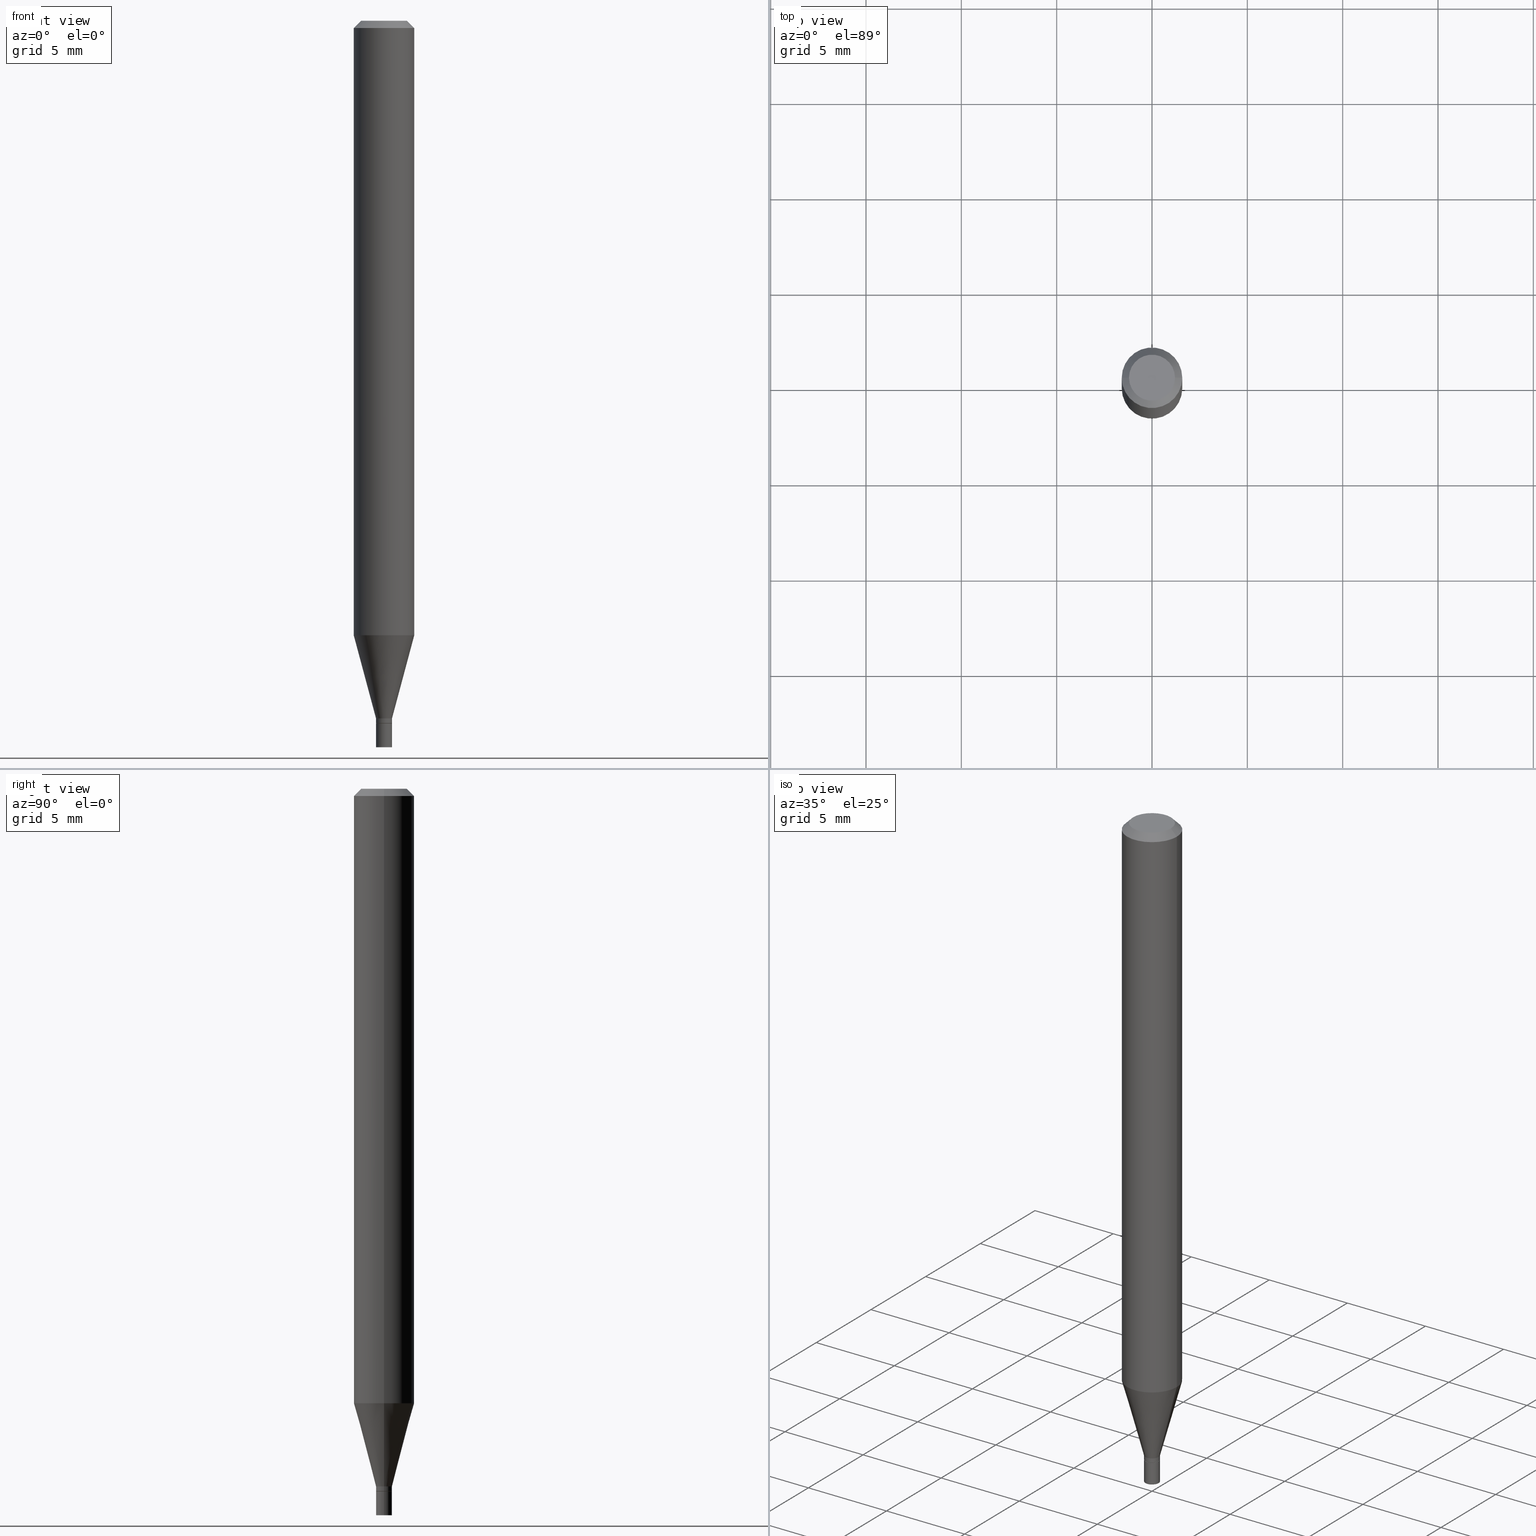
[diagram: canonical four-view strip — front | top / right | iso, engineering-drawing reading convention]
A machine part, canonical four-view strip (front | top / right | iso — engineering-drawing reading convention). The complete STEP part file that produces these views, byte-faithful:
ISO-10303-21;
HEADER;
FILE_DESCRIPTION (( 'STEP AP203' ),
    '1' );
FILE_NAME ('01113.STEP',
    '2024-03-19T23:01:56',
    ( '' ),
    ( '' ),
    'SwSTEP 2.0',
    'SolidWorks 2023',
    '' );
FILE_SCHEMA (( 'CONFIG_CONTROL_DESIGN' ));
ENDSEC;

DATA;
#1 = ADVANCED_FACE ( 'NONE', ( #150 ), #433, .F. ) ;
#2 = VECTOR ( 'NONE', #173, 39.37007874015748143 ) ;
#3 = AXIS2_PLACEMENT_3D ( 'NONE', #460, #425, #439 ) ;
#4 = VERTEX_POINT ( 'NONE', #49 ) ;
#5 = EDGE_LOOP ( 'NONE', ( #145, #39, #78, #212 ) ) ;
#6 = CARTESIAN_POINT ( 'NONE',  ( 0.000000000000000000, 0.000000000000000000, 0.000000000000000000 ) ) ;
#7 = CARTESIAN_POINT ( 'NONE',  ( 3.668203209277705088E-31, -5.237222008264718399E-17, -0.01499999999999999944 ) ) ;
#8 = VERTEX_POINT ( 'NONE', #291 ) ;
#9 = ORIENTED_EDGE ( 'NONE', *, *, #355, .F. ) ;
#10 = AXIS2_PLACEMENT_3D ( 'NONE', #80, #214, #358 ) ;
#11 = DIRECTION ( 'NONE',  ( -2.445468806185136597E-29, 3.491481338843145583E-15, 1.000000000000000000 ) ) ;
#12 = EDGE_CURVE ( 'NONE', #4, #375, #435, .T. ) ;
#13 = CARTESIAN_POINT ( 'NONE',  ( -1.212688977629174450E-44, 1.731398464173454166E-30, 4.958922291554132214E-16 ) ) ;
#14 = ORIENTED_EDGE ( 'NONE', *, *, #294, .T. ) ;
#15 = CARTESIAN_POINT ( 'NONE',  ( -0.06250000000000000000, -1.797137462237488700E-15, -0.01499999999999999944 ) ) ;
#16 = DATE_AND_TIME ( #296, #123 ) ;
#17 = LINE ( 'NONE', #441, #19 ) ;
#18 = ORIENTED_EDGE ( 'NONE', *, *, #70, .T. ) ;
#19 = VECTOR ( 'NONE', #417, 39.37007874015748143 ) ;
#20 = CALENDAR_DATE ( 2024, 19, 3 ) ;
#21 = CARTESIAN_POINT ( 'NONE',  ( -0.01650000000000000078, -5.033568293727934749E-15, -1.450499999999999901 ) ) ;
#22 = AXIS2_PLACEMENT_3D ( 'NONE', #6, #141, #267 ) ;
#23 = DIMENSIONAL_EXPONENTS ( 1.000000000000000000, 0.000000000000000000, 0.000000000000000000, 0.000000000000000000, 0.000000000000000000, 0.000000000000000000, 0.000000000000000000 ) ;
#24 = COORDINATED_UNIVERSAL_TIME_OFFSET ( 5, 0, .BEHIND. ) ;
#25 = DIRECTION ( 'NONE',  ( -2.445468806185136877E-29, 3.491481338843145188E-15, 1.000000000000000000 ) ) ;
#26 = DIRECTION ( 'NONE',  ( -2.445468806185136597E-29, 3.491481338843145583E-15, 1.000000000000000000 ) ) ;
#27 = ORIENTED_EDGE ( 'NONE', *, *, #355, .T. ) ;
#28 = DIRECTION ( 'NONE',  ( 1.000000000000000000, -6.982962677686266711E-15, 0.000000000000000000 ) ) ;
#29 = FACE_OUTER_BOUND ( 'NONE', #360, .T. ) ;
#30 = PRODUCT_DEFINITION_SHAPE ( 'NONE', 'NONE',  #348 ) ;
#31 = VERTEX_POINT ( 'NONE', #98 ) ;
#32 = APPROVAL_ROLE ( '' ) ;
#33 = FACE_OUTER_BOUND ( 'NONE', #295, .T. ) ;
#34 = VECTOR ( 'NONE', #464, 39.37007874015748143 ) ;
#35 = EDGE_CURVE ( 'NONE', #190, #68, #392, .T. ) ;
#36 = CC_DESIGN_APPROVAL ( #45, ( #110 ) ) ;
#37 = CARTESIAN_POINT ( 'NONE',  ( 3.547152503371540530E-29, -5.064393681991982224E-15, -1.450499999999999901 ) ) ;
#38 = CARTESIAN_POINT ( 'NONE',  ( 3.545929768968448850E-29, -5.062647941322561509E-15, -1.450000000000000178 ) ) ;
#39 = ORIENTED_EDGE ( 'NONE', *, *, #255, .T. ) ;
#40 = CARTESIAN_POINT ( 'NONE',  ( 0.01650000000000000078, -1.152188841818234017E-16, 8.045691680063294479E-31 ) ) ;
#41 = APPLICATION_CONTEXT ( 'configuration controlled 3d designs of mechanical parts and assemblies' ) ;
#42 = AXIS2_PLACEMENT_3D ( 'NONE', #409, #97, #263 ) ;
#43 = AXIS2_PLACEMENT_3D ( 'NONE', #116, #373, #376 ) ;
#44 = EDGE_LOOP ( 'NONE', ( #152, #332 ) ) ;
#45 = APPROVAL ( #230, 'UNSPECIFIED' ) ;
#46 = CIRCLE ( 'NONE', #247, 0.01649999999999992445 ) ;
#47 = LOCAL_TIME ( 19, 1, 56.00000000000000000, #62 ) ;
#48 = DIRECTION ( 'NONE',  ( 1.000000000000000000, -6.982962677686276177E-15, 0.000000000000000000 ) ) ;
#49 = CARTESIAN_POINT ( 'NONE',  ( -0.06250000000000001388, -3.985991914242392542E-15, -1.268825662851831737 ) ) ;
#50 = CIRCLE ( 'NONE', #147, 0.06250000000000000000 ) ;
#51 = ORIENTED_EDGE ( 'NONE', *, *, #94, .F. ) ;
#52 = DIRECTION ( 'NONE',  ( -1.000000000000000000, 6.982962677686266711E-15, 0.000000000000000000 ) ) ;
#53 = CC_DESIGN_PERSON_AND_ORGANIZATION_ASSIGNMENT ( #448, #86, ( #175 ) ) ;
#54 = PERSON_AND_ORGANIZATION ( #290, #217 ) ;
#55 = DIRECTION ( 'NONE',  ( 1.000000000000000000, -6.982962677686265922E-15, 4.876176775795935793E-29 ) ) ;
#56 = ORIENTED_EDGE ( 'NONE', *, *, #207, .T. ) ;
#57 = CIRCLE ( 'NONE', #370, 0.06250000000000000000 ) ;
#58 = APPROVAL_ROLE ( '' ) ;
#59 = DIRECTION ( 'NONE',  ( -1.000000000000000000, 6.982962677686266711E-15, 0.000000000000000000 ) ) ;
#60 = EDGE_LOOP ( 'NONE', ( #51, #198, #56, #346 ) ) ;
#61 = LINE ( 'NONE', #407, #193 ) ;
#62 = COORDINATED_UNIVERSAL_TIME_OFFSET ( 5, 0, .BEHIND. ) ;
#63 =( CONVERSION_BASED_UNIT ( 'INCH', #191 ) LENGTH_UNIT ( ) NAMED_UNIT ( #23 ) );
#64 = DIRECTION ( 'NONE',  ( 1.000000000000000000, -6.982962677686266711E-15, 4.876176775795935793E-29 ) ) ;
#65 = CC_DESIGN_PERSON_AND_ORGANIZATION_ASSIGNMENT ( #114, #331, ( #110 ) ) ;
#66 = LINE ( 'NONE', #330, #216 ) ;
#67 = AXIS2_PLACEMENT_3D ( 'NONE', #13, #26, #429 ) ;
#68 = VERTEX_POINT ( 'NONE', #21 ) ;
#69 = FACE_OUTER_BOUND ( 'NONE', #411, .T. ) ;
#70 = EDGE_CURVE ( 'NONE', #8, #466, #427, .T. ) ;
#71 = CARTESIAN_POINT ( 'NONE',  ( 0.000000000000000000, 0.000000000000000000, 0.000000000000000000 ) ) ;
#72 = FACE_OUTER_BOUND ( 'NONE', #60, .T. ) ;
#73 = AXIS2_PLACEMENT_3D ( 'NONE', #271, #335, #55 ) ;
#74 = ADVANCED_FACE ( 'NONE', ( #33 ), #343, .F. ) ;
#75 = FACE_OUTER_BOUND ( 'NONE', #187, .T. ) ;
#76 = ORIENTED_EDGE ( 'NONE', *, *, #207, .F. ) ;
#77 = ADVANCED_FACE ( 'NONE', ( #308 ), #109, .T. ) ;
#78 = ORIENTED_EDGE ( 'NONE', *, *, #223, .F. ) ;
#79 = DIRECTION ( 'NONE',  ( -2.445468806185136597E-29, 3.491481338843145583E-15, 1.000000000000000000 ) ) ;
#80 = CARTESIAN_POINT ( 'NONE',  ( 1.152188841818588511E-16, 0.01649999999999493538, -1.450499999999999901 ) ) ;
#81 = CC_DESIGN_DATE_AND_TIME_ASSIGNMENT ( #342, #92, ( #348 ) ) ;
#82 = DIRECTION ( 'NONE',  ( 1.000000000000000000, -6.982962677686276177E-15, 0.000000000000000000 ) ) ;
#83 = VECTOR ( 'NONE', #168, 39.37007874015748143 ) ;
#84 = FACE_OUTER_BOUND ( 'NONE', #276, .T. ) ;
#85 = VERTEX_POINT ( 'NONE', #120 ) ;
#86 = PERSON_AND_ORGANIZATION_ROLE ( 'design_owner' ) ;
#87 = DIRECTION ( 'NONE',  ( -2.445468806185136597E-29, 3.491481338843145583E-15, 1.000000000000000000 ) ) ;
#88 = DATE_TIME_ROLE ( 'classification_date' ) ;
#89 = PERSON_AND_ORGANIZATION_ROLE ( 'creator' ) ;
#90 = DIRECTION ( 'NONE',  ( -0.7071067811865358044, 2.468850131082134787E-15, -0.7071067811865591191 ) ) ;
#91 = ORIENTED_EDGE ( 'NONE', *, *, #172, .T. ) ;
#92 = DATE_TIME_ROLE ( 'creation_date' ) ;
#93 = CARTESIAN_POINT ( 'NONE',  ( 0.01649999999999992445, -5.177866825504383900E-15, -1.450000000000000178 ) ) ;
#94 = EDGE_CURVE ( 'NONE', #419, #8, #17, .T. ) ;
#95 = ORIENTED_EDGE ( 'NONE', *, *, #371, .F. ) ;
#96 = COORDINATED_UNIVERSAL_TIME_OFFSET ( 5, 0, .BEHIND. ) ;
#97 = DIRECTION ( 'NONE',  ( -2.445468806185136597E-29, 3.491481338843145583E-15, 1.000000000000000000 ) ) ;
#98 = CARTESIAN_POINT ( 'NONE',  ( 0.04749999999999999362, -4.035134999187569255E-16, 4.958922291554157852E-16 ) ) ;
#99 = DIRECTION ( 'NONE',  ( 1.000000000000000000, -6.982962677686243834E-15, 0.000000000000000000 ) ) ;
#100 = CIRCLE ( 'NONE', #383, 0.01649999999999992445 ) ;
#101 = ORIENTED_EDGE ( 'NONE', *, *, #223, .T. ) ;
#102 = DIRECTION ( 'NONE',  ( -0.7071067811865642261, 7.493145998870414114E-15, 0.7071067811865309194 ) ) ;
#103 = DIRECTION ( 'NONE',  ( -2.445468806185136597E-29, 3.491481338843145583E-15, 1.000000000000000000 ) ) ;
#104 = CIRCLE ( 'NONE', #3, 0.01600000000000000033 ) ;
#105 = EDGE_CURVE ( 'NONE', #31, #85, #165, .T. ) ;
#106 = VERTEX_POINT ( 'NONE', #345 ) ;
#107 = CARTESIAN_POINT ( 'NONE',  ( 3.584916967085606921E-29, -5.356492647442320375E-15, -1.500000000000000222 ) ) ;
#108 = EDGE_CURVE ( 'NONE', #458, #106, #462, .T. ) ;
#109 = CONICAL_SURFACE ( 'NONE', #194, 0.01600000000000000033, 0.7853981633974718157 ) ;
#110 = SECURITY_CLASSIFICATION ( '', '', #151 ) ;
#111 = EDGE_LOOP ( 'NONE', ( #244, #367, #408, #437 ) ) ;
#112 = CARTESIAN_POINT ( 'NONE',  ( 3.522697815309689546E-29, -5.029478868603552152E-15, -1.440500000000000114 ) ) ;
#113 = CARTESIAN_POINT ( 'NONE',  ( -0.06250000000000000000, 4.440892098500626162E-16, -3.074334431409316114E-30 ) ) ;
#114 = PERSON_AND_ORGANIZATION ( #290, #217 ) ;
#115 = PRODUCT_RELATED_PRODUCT_CATEGORY ( 'detail', '', ( #175 ) ) ;
#116 = CARTESIAN_POINT ( 'NONE',  ( 0.000000000000000000, 0.000000000000000000, 0.000000000000000000 ) ) ;
#117 = CARTESIAN_POINT ( 'NONE',  ( 0.06250000000000000000, -4.811533449433679005E-16, -0.01499999999999999944 ) ) ;
#118 = DATE_AND_TIME ( #446, #47 ) ;
#119 = MECHANICAL_CONTEXT ( 'NONE', #41, 'mechanical' ) ;
#120 = CARTESIAN_POINT ( 'NONE',  ( 0.06250000000000000000, -4.888073874380388472E-16, -0.01499999999999999944 ) ) ;
#121 = CARTESIAN_POINT ( 'NONE',  ( 3.547152503371540530E-29, -5.064393681991982224E-15, -1.450499999999999901 ) ) ;
#122 = ADVANCED_FACE ( 'NONE', ( #29 ), #192, .F. ) ;
#123 = LOCAL_TIME ( 19, 1, 56.00000000000000000, #96 ) ;
#124 = CARTESIAN_POINT ( 'NONE',  ( 3.522697815309689546E-29, -5.029478868603552152E-15, -1.440500000000000114 ) ) ;
#125 = APPROVAL ( #368, 'UNSPECIFIED' ) ;
#126 = APPROVAL_DATE_TIME ( #118, #45 ) ;
#127 = ORIENTED_EDGE ( 'NONE', *, *, #393, .T. ) ;
#128 = FACE_OUTER_BOUND ( 'NONE', #252, .T. ) ;
#129 = DIRECTION ( 'NONE',  ( 0.2588190451025211281, 1.565188264969623940E-15, 0.9659258262890682012 ) ) ;
#130 = EDGE_CURVE ( 'NONE', #322, #375, #236, .T. ) ;
#131 = EDGE_LOOP ( 'NONE', ( #421, #256 ) ) ;
#132 = CARTESIAN_POINT ( 'NONE',  ( 3.668203209277704895E-29, -5.237222008264718177E-15, -1.500000000000000222 ) ) ;
#133 = PERSON_AND_ORGANIZATION ( #290, #217 ) ;
#134 = FACE_OUTER_BOUND ( 'NONE', #5, .T. ) ;
#135 = AXIS2_PLACEMENT_3D ( 'NONE', #344, #170, #262 ) ;
#136 = CARTESIAN_POINT ( 'NONE',  ( 3.522697815309689546E-29, -5.029478868603552152E-15, -1.440500000000000114 ) ) ;
#137 = VERTEX_POINT ( 'NONE', #93 ) ;
#138 = CC_DESIGN_PERSON_AND_ORGANIZATION_ASSIGNMENT ( #245, #181, ( #398 ) ) ;
#139 = EDGE_LOOP ( 'NONE', ( #340, #91, #166, #384 ) ) ;
#140 = ADVANCED_FACE ( 'NONE', ( #297 ), #162, .T. ) ;
#141 = DIRECTION ( 'NONE',  ( -2.445468806185136597E-29, 3.491481338843145583E-15, 1.000000000000000000 ) ) ;
#142 = ORIENTED_EDGE ( 'NONE', *, *, #381, .T. ) ;
#143 = MANIFOLD_SOLID_BREP ( 'Body-Move/Copy2[1]', #176 ) ;
#144 = DIRECTION ( 'NONE',  ( 1.000000000000000000, -6.982962677686265922E-15, 4.876176775795935793E-29 ) ) ;
#145 = ORIENTED_EDGE ( 'NONE', *, *, #312, .T. ) ;
#146 = CIRCLE ( 'NONE', #382, 0.01650000000000000078 ) ;
#147 = AXIS2_PLACEMENT_3D ( 'NONE', #365, #196, #28 ) ;
#148 = ORIENTED_EDGE ( 'NONE', *, *, #286, .F. ) ;
#149 = CARTESIAN_POINT ( 'NONE',  ( 0.01650000000000000078, -5.352440892446541357E-15, -1.500000000000000222 ) ) ;
#150 = FACE_OUTER_BOUND ( 'NONE', #131, .T. ) ;
#151 = SECURITY_CLASSIFICATION_LEVEL ( 'unclassified' ) ;
#152 = ORIENTED_EDGE ( 'NONE', *, *, #294, .F. ) ;
#153 = DIRECTION ( 'NONE',  ( -2.445468806185136877E-29, 3.491481338843145188E-15, 1.000000000000000000 ) ) ;
#154 = ADVANCED_FACE ( 'NONE', ( #420 ), #269, .T. ) ;
#155 = MANIFOLD_SOLID_BREP ( 'Body-Move/Copy2[2]', #209 ) ;
#156 = DIRECTION ( 'NONE',  ( -2.445468806185136597E-29, 3.491481338843145583E-15, 1.000000000000000000 ) ) ;
#157 = DIRECTION ( 'NONE',  ( 1.000000000000000000, -6.982962677686271444E-15, 0.000000000000000000 ) ) ;
#158 = CONICAL_SURFACE ( 'NONE', #423, 0.01600000000000000033, 0.7853981633974718157 ) ;
#159 = AXIS2_PLACEMENT_3D ( 'NONE', #112, #79, #82 ) ;
#160 = ORIENTED_EDGE ( 'NONE', *, *, #465, .T. ) ;
#161 =( LENGTH_UNIT ( ) NAMED_UNIT ( * ) SI_UNIT ( $, .METRE. ) );
#162 = CYLINDRICAL_SURFACE ( 'NONE', #323, 0.06250000000000000000 ) ;
#163 = EDGE_CURVE ( 'NONE', #466, #301, #61, .T. ) ;
#164 = CALENDAR_DATE ( 2024, 19, 3 ) ;
#165 = LINE ( 'NONE', #117, #336 ) ;
#166 = ORIENTED_EDGE ( 'NONE', *, *, #215, .T. ) ;
#167 = DIRECTION ( 'NONE',  ( 1.000000000000000000, -6.982962677686262766E-15, 0.000000000000000000 ) ) ;
#168 = DIRECTION ( 'NONE',  ( -2.445468806185136877E-29, 3.491481338843145188E-15, 1.000000000000000000 ) ) ;
#169 = LOCAL_TIME ( 19, 1, 56.00000000000000000, #224 ) ;
#170 = DIRECTION ( 'NONE',  ( 0.000000000000000000, 0.000000000000000000, 1.000000000000000000 ) ) ;
#171 = DIRECTION ( 'NONE',  ( 1.000000000000000000, -6.982962677686276177E-15, 0.000000000000000000 ) ) ;
#172 = EDGE_CURVE ( 'NONE', #315, #404, #146, .T. ) ;
#173 = DIRECTION ( 'NONE',  ( -2.445468806185136877E-29, 3.491481338843145188E-15, 1.000000000000000000 ) ) ;
#174 = DIRECTION ( 'NONE',  ( 1.000000000000000000, -6.982962677686276177E-15, 0.000000000000000000 ) ) ;
#175 = PRODUCT ( '01113', '01113', '', ( #119 ) ) ;
#176 = CLOSED_SHELL ( 'NONE', ( #363, #352, #401, #1 ) ) ;
#177 = DIRECTION ( 'NONE',  ( -2.445468806185136597E-29, 3.491481338843145583E-15, 1.000000000000000000 ) ) ;
#178 = CONICAL_SURFACE ( 'NONE', #279, 0.01649999999999992445, 0.2617993877991497964 ) ;
#179 = EDGE_CURVE ( 'NONE', #8, #4, #66, .T. ) ;
#180 = AXIS2_PLACEMENT_3D ( 'NONE', #233, #87, #222 ) ;
#181 = PERSON_AND_ORGANIZATION_ROLE ( 'design_supplier' ) ;
#182 = ORIENTED_EDGE ( 'NONE', *, *, #215, .F. ) ;
#183 = FACE_OUTER_BOUND ( 'NONE', #139, .T. ) ;
#184 = CARTESIAN_POINT ( 'NONE',  ( -0.04749999999999999362, 3.578768372314218888E-16, 4.958922291554107562E-16 ) ) ;
#185 = CIRCLE ( 'NONE', #180, 0.04749999999999999362 ) ;
#186 = APPROVAL_PERSON_ORGANIZATION ( #225, #125, #58 ) ;
#187 = EDGE_LOOP ( 'NONE', ( #101, #456, #95, #76 ) ) ;
#188 = DIRECTION ( 'NONE',  ( -2.438088387897960049E-29, 3.491481338843145188E-15, 1.000000000000000000 ) ) ;
#189 = EDGE_CURVE ( 'NONE', #31, #322, #185, .T. ) ;
#190 = VERTEX_POINT ( 'NONE', #366 ) ;
#191 = LENGTH_MEASURE_WITH_UNIT ( LENGTH_MEASURE( 0.02539999999999999897 ), #161 );
#192 = PLANE ( 'NONE',  #319 ) ;
#193 = VECTOR ( 'NONE', #129, 39.37007874015748143 ) ;
#194 = AXIS2_PLACEMENT_3D ( 'NONE', #121, #266, #157 ) ;
#195 = APPROVAL_PERSON_ORGANIZATION ( #364, #45, #273 ) ;
#196 = DIRECTION ( 'NONE',  ( -2.445468806185136597E-29, 3.491481338843145583E-15, 1.000000000000000000 ) ) ;
#197 = DIRECTION ( 'NONE',  ( -2.445468806185136597E-29, 3.491481338843145583E-15, 1.000000000000000000 ) ) ;
#198 = ORIENTED_EDGE ( 'NONE', *, *, #341, .T. ) ;
#199 = CARTESIAN_POINT ( 'NONE',  ( 0.01649999999999992445, -1.152188841818228594E-16, 8.045691680063255943E-31 ) ) ;
#200 = APPLICATION_PROTOCOL_DEFINITION ( 'international standard', 'config_control_design', 1994, #41 ) ;
#201 = CARTESIAN_POINT ( 'NONE',  ( 3.668203209277705088E-31, -5.237222008264718399E-17, -0.01499999999999999944 ) ) ;
#202 = VECTOR ( 'NONE', #102, 39.37007874015748143 ) ;
#203 = DIRECTION ( 'NONE',  ( 1.000000000000000000, -6.982962677686243834E-15, 0.000000000000000000 ) ) ;
#204 = CARTESIAN_POINT ( 'NONE',  ( 3.522697815309689546E-29, -5.029478868603552152E-15, -1.440500000000000114 ) ) ;
#205 = LINE ( 'NONE', #385, #34 ) ;
#206 = CARTESIAN_POINT ( 'NONE',  ( -0.01600000000000000033, -4.950706844270366093E-15, -1.450499999999999901 ) ) ;
#207 = EDGE_CURVE ( 'NONE', #137, #466, #339, .T. ) ;
#208 = CYLINDRICAL_SURFACE ( 'NONE', #22, 0.01649999999999992445 ) ;
#209 = CLOSED_SHELL ( 'NONE', ( #418, #281, #154, #436, #306, #249, #140, #410, #122, #74, #77, #237 ) ) ;
#210 = CONICAL_SURFACE ( 'NONE', #351, 0.06250000000000000000, 0.7853981633974318477 ) ;
#211 = EDGE_LOOP ( 'NONE', ( #287, #18, #231, #430 ) ) ;
#212 = ORIENTED_EDGE ( 'NONE', *, *, #243, .F. ) ;
#213 = CARTESIAN_POINT ( 'NONE',  ( -0.01650000000000000078, 1.172395514004165362E-16, -8.116242898920594736E-31 ) ) ;
#214 = DIRECTION ( 'NONE',  ( 2.438088387897960049E-29, -3.491481338843145188E-15, -1.000000000000000000 ) ) ;
#215 = EDGE_CURVE ( 'NONE', #404, #190, #451, .T. ) ;
#216 = VECTOR ( 'NONE', #305, 39.37007874015748143 ) ;
#217 = ORGANIZATION ( 'UNSPECIFIED', 'UNSPECIFIED', '' ) ;
#218 = DATE_AND_TIME ( #234, #169 ) ;
#219 = CC_DESIGN_DATE_AND_TIME_ASSIGNMENT ( #218, #88, ( #110 ) ) ;
#220 = CARTESIAN_POINT ( 'NONE',  ( 3.668203209277705088E-31, -5.237222008264718399E-17, -0.01499999999999999944 ) ) ;
#221 = PERSON_AND_ORGANIZATION ( #290, #217 ) ;
#222 = DIRECTION ( 'NONE',  ( 1.000000000000000000, -6.982962677686267499E-15, 4.852736867747366768E-29 ) ) ;
#223 = EDGE_CURVE ( 'NONE', #137, #419, #46, .T. ) ;
#224 = COORDINATED_UNIVERSAL_TIME_OFFSET ( 5, 0, .BEHIND. ) ;
#225 = PERSON_AND_ORGANIZATION ( #290, #217 ) ;
#226 = DIRECTION ( 'NONE',  ( 2.445468806185136597E-29, -3.491481338843145583E-15, -1.000000000000000000 ) ) ;
#227 = CC_DESIGN_PERSON_AND_ORGANIZATION_ASSIGNMENT ( #54, #89, ( #348 ) ) ;
#228 = VECTOR ( 'NONE', #25, 39.37007874015748143 ) ;
#229 = AXIS2_PLACEMENT_3D ( 'NONE', #250, #288, #432 ) ;
#230 = APPROVAL_STATUS ( 'not_yet_approved' ) ;
#231 = ORIENTED_EDGE ( 'NONE', *, *, #163, .T. ) ;
#232 = DATE_AND_TIME ( #164, #453 ) ;
#233 = CARTESIAN_POINT ( 'NONE',  ( -1.212688977629174450E-44, 1.731398464173454166E-30, 4.958922291554132214E-16 ) ) ;
#234 = CALENDAR_DATE ( 2024, 19, 3 ) ;
#235 = EDGE_LOOP ( 'NONE', ( #390, #415, #27, #299 ) ) ;
#236 = LINE ( 'NONE', #377, #397 ) ;
#237 = ADVANCED_FACE ( 'NONE', ( #72 ), #426, .T. ) ;
#238 = CARTESIAN_POINT ( 'NONE',  ( -0.01649999999999992445, -4.945408389922145269E-15, -1.450000000000000178 ) ) ;
#239 = CARTESIAN_POINT ( 'NONE',  ( 3.668203209277704895E-29, -5.237222008264718177E-15, -1.500000000000000222 ) ) ;
#240 = AXIS2_PLACEMENT_3D ( 'NONE', #374, #445, #300 ) ;
#241 = CARTESIAN_POINT ( 'NONE',  ( 0.06250000000000001388, -4.866516291447847616E-15, -1.268825662851831737 ) ) ;
#242 = CARTESIAN_POINT ( 'NONE',  ( 0.06250000000000000000, -4.364351673553916694E-16, 3.047610484872459871E-30 ) ) ;
#243 = EDGE_CURVE ( 'NONE', #106, #137, #205, .T. ) ;
#244 = ORIENTED_EDGE ( 'NONE', *, *, #255, .F. ) ;
#245 = PERSON_AND_ORGANIZATION ( #290, #217 ) ;
#246 = DIRECTION ( 'NONE',  ( 1.000000000000000000, -6.982962677686276177E-15, 0.000000000000000000 ) ) ;
#247 = AXIS2_PLACEMENT_3D ( 'NONE', #38, #283, #317 ) ;
#248 = AXIS2_PLACEMENT_3D ( 'NONE', #362, #293, #438 ) ;
#249 = ADVANCED_FACE ( 'NONE', ( #391 ), #353, .T. ) ;
#250 = CARTESIAN_POINT ( 'NONE',  ( 0.000000000000000000, 0.000000000000000000, 0.000000000000000000 ) ) ;
#251 = DIRECTION ( 'NONE',  ( 1.000000000000000000, -6.982962677686266711E-15, 0.000000000000000000 ) ) ;
#252 = EDGE_LOOP ( 'NONE', ( #127, #440, #9, #148 ) ) ;
#253 = CIRCLE ( 'NONE', #289, 0.01650000000000000078 ) ;
#254 = ORIENTED_EDGE ( 'NONE', *, *, #189, .T. ) ;
#255 = EDGE_CURVE ( 'NONE', #458, #419, #347, .T. ) ;
#256 = ORIENTED_EDGE ( 'NONE', *, *, #272, .T. ) ;
#257 = LINE ( 'NONE', #213, #424 ) ;
#258 = AXIS2_PLACEMENT_3D ( 'NONE', #124, #197, #171 ) ;
#259 = CC_DESIGN_SECURITY_CLASSIFICATION ( #110, ( #398 ) ) ;
#260 = ORIENTED_EDGE ( 'NONE', *, *, #371, .T. ) ;
#261 = APPROVAL ( #379, 'UNSPECIFIED' ) ;
#262 = DIRECTION ( 'NONE',  ( 1.000000000000000000, 0.000000000000000000, 0.000000000000000000 ) ) ;
#263 = DIRECTION ( 'NONE',  ( 1.000000000000000000, -6.982962677686271444E-15, 0.000000000000000000 ) ) ;
#264 = EDGE_LOOP ( 'NONE', ( #278, #160, #447, #313 ) ) ;
#265 = APPROVAL_DATE_TIME ( #16, #261 ) ;
#266 = DIRECTION ( 'NONE',  ( -2.445468806185136597E-29, 3.491481338843145583E-15, 1.000000000000000000 ) ) ;
#267 = DIRECTION ( 'NONE',  ( 1.000000000000000000, -6.982962677686265922E-15, 4.876176775795935232E-29 ) ) ;
#268 = DIRECTION ( 'NONE',  ( -1.000000000000000000, 6.982962677686265922E-15, -4.876176775795935793E-29 ) ) ;
#269 = CONICAL_SURFACE ( 'NONE', #413, 0.06250000000000000000, 0.7853981633974318477 ) ;
#270 =( GEOMETRIC_REPRESENTATION_CONTEXT ( 3 ) GLOBAL_UNCERTAINTY_ASSIGNED_CONTEXT ( ( #405 ) ) GLOBAL_UNIT_ASSIGNED_CONTEXT ( ( #63, #304, #416 ) ) REPRESENTATION_CONTEXT ( 'NONE', 'WORKASPACE' ) );
#271 = CARTESIAN_POINT ( 'NONE',  ( 3.547152503371540530E-29, -5.064393681991982224E-15, -1.450499999999999901 ) ) ;
#272 = EDGE_CURVE ( 'NONE', #68, #190, #461, .T. ) ;
#273 = APPROVAL_ROLE ( '' ) ;
#274 = ORIENTED_EDGE ( 'NONE', *, *, #163, .F. ) ;
#275 = CARTESIAN_POINT ( 'NONE',  ( 0.000000000000000000, 0.000000000000000000, 0.000000000000000000 ) ) ;
#276 = EDGE_LOOP ( 'NONE', ( #387, #356, #443, #463 ) ) ;
#277 = DIRECTION ( 'NONE',  ( -2.445468806185136597E-29, 3.491481338843145583E-15, 1.000000000000000000 ) ) ;
#278 = ORIENTED_EDGE ( 'NONE', *, *, #12, .F. ) ;
#279 = AXIS2_PLACEMENT_3D ( 'NONE', #204, #349, #174 ) ;
#280 = LINE ( 'NONE', #242, #2 ) ;
#281 = ADVANCED_FACE ( 'NONE', ( #134 ), #158, .T. ) ;
#282 = EDGE_LOOP ( 'NONE', ( #14, #142, #372, #182 ) ) ;
#283 = DIRECTION ( 'NONE',  ( -2.445468806185136597E-29, 3.491481338843145583E-15, 1.000000000000000000 ) ) ;
#284 = APPLICATION_CONTEXT ( 'configuration controlled 3d designs of mechanical parts and assemblies' ) ;
#285 = AXIS2_PLACEMENT_3D ( 'NONE', #71, #177, #389 ) ;
#286 = EDGE_CURVE ( 'NONE', #301, #85, #280, .T. ) ;
#287 = ORIENTED_EDGE ( 'NONE', *, *, #179, .F. ) ;
#288 = DIRECTION ( 'NONE',  ( -2.445468806185136597E-29, 3.491481338843145583E-15, 1.000000000000000000 ) ) ;
#289 = AXIS2_PLACEMENT_3D ( 'NONE', #132, #277, #99 ) ;
#290 = PERSON ( 'UNSPECIFIED', 'UNSPECIFIED', 'UNSPECIFIED', ('UNSPECIFIED'), ('UNSPECIFIED'), ('UNSPECIFIED') ) ;
#291 = CARTESIAN_POINT ( 'NONE',  ( -0.01649999999999992445, -4.449115615722764621E-15, -1.440500000000000114 ) ) ;
#292 = ORIENTED_EDGE ( 'NONE', *, *, #328, .T. ) ;
#293 = DIRECTION ( 'NONE',  ( -2.445468806185136597E-29, 3.491481338843145583E-15, 1.000000000000000000 ) ) ;
#294 = EDGE_CURVE ( 'NONE', #404, #315, #253, .T. ) ;
#295 = EDGE_LOOP ( 'NONE', ( #318, #378 ) ) ;
#296 = CALENDAR_DATE ( 2024, 19, 3 ) ;
#297 = FACE_OUTER_BOUND ( 'NONE', #264, .T. ) ;
#298 = AXIS2_PLACEMENT_3D ( 'NONE', #37, #457, #203 ) ;
#299 = ORIENTED_EDGE ( 'NONE', *, *, #130, .F. ) ;
#300 = DIRECTION ( 'NONE',  ( 1.000000000000000000, -6.982962677686243834E-15, 0.000000000000000000 ) ) ;
#301 = VERTEX_POINT ( 'NONE', #241 ) ;
#302 = CARTESIAN_POINT ( 'NONE',  ( 3.102873578991333578E-29, -4.430081124092455158E-15, -1.268825662851831737 ) ) ;
#303 = DIRECTION ( 'NONE',  ( 2.438088387897960049E-29, -3.491481338843145188E-15, -1.000000000000000000 ) ) ;
#304 =( NAMED_UNIT ( * ) PLANE_ANGLE_UNIT ( ) SI_UNIT ( $, .RADIAN. ) );
#305 = DIRECTION ( 'NONE',  ( -0.2588190451025211281, 5.211531920934548675E-15, 0.9659258262890682012 ) ) ;
#306 = ADVANCED_FACE ( 'NONE', ( #69 ), #178, .T. ) ;
#307 = AXIS2_PLACEMENT_3D ( 'NONE', #107, #188, #144 ) ;
#308 = FACE_OUTER_BOUND ( 'NONE', #111, .T. ) ;
#309 = ORIENTED_EDGE ( 'NONE', *, *, #179, .T. ) ;
#310 = DIRECTION ( 'NONE',  ( -2.445468806185136597E-29, 3.491481338843145583E-15, 1.000000000000000000 ) ) ;
#311 = ADVANCED_BREP_SHAPE_REPRESENTATION ( '01113', ( #143, #155, #135 ), #270 ) ;
#312 = EDGE_CURVE ( 'NONE', #106, #458, #104, .T. ) ;
#313 = ORIENTED_EDGE ( 'NONE', *, *, #444, .F. ) ;
#314 = DIRECTION ( 'NONE',  ( -2.445468806185136877E-29, 3.491481338843145188E-15, 1.000000000000000000 ) ) ;
#315 = VERTEX_POINT ( 'NONE', #396 ) ;
#316 = AXIS2_PLACEMENT_3D ( 'NONE', #302, #156, #167 ) ;
#317 = DIRECTION ( 'NONE',  ( 1.000000000000000000, -6.982962677686276177E-15, 0.000000000000000000 ) ) ;
#318 = ORIENTED_EDGE ( 'NONE', *, *, #312, .F. ) ;
#319 = AXIS2_PLACEMENT_3D ( 'NONE', #455, #303, #268 ) ;
#320 = LOCAL_TIME ( 19, 1, 56.00000000000000000, #333 ) ;
#321 = FACE_OUTER_BOUND ( 'NONE', #44, .T. ) ;
#322 = VERTEX_POINT ( 'NONE', #184 ) ;
#323 = AXIS2_PLACEMENT_3D ( 'NONE', #275, #412, #64 ) ;
#324 = DIRECTION ( 'NONE',  ( -2.445468806185136597E-29, 3.491481338843145583E-15, 1.000000000000000000 ) ) ;
#325 = APPROVAL_PERSON_ORGANIZATION ( #221, #261, #32 ) ;
#326 = ORIENTED_EDGE ( 'NONE', *, *, #393, .F. ) ;
#327 = DIRECTION ( 'NONE',  ( -2.445468806185136597E-29, 3.491481338843145583E-15, 1.000000000000000000 ) ) ;
#328 = EDGE_CURVE ( 'NONE', #322, #31, #354, .T. ) ;
#329 = CARTESIAN_POINT ( 'NONE',  ( 0.000000000000000000, 0.000000000000000000, 0.000000000000000000 ) ) ;
#330 = CARTESIAN_POINT ( 'NONE',  ( -0.01649999999999992445, -4.912239317203135912E-15, -1.440500000000000114 ) ) ;
#331 = PERSON_AND_ORGANIZATION_ROLE ( 'classification_officer' ) ;
#332 = ORIENTED_EDGE ( 'NONE', *, *, #172, .F. ) ;
#333 = COORDINATED_UNIVERSAL_TIME_OFFSET ( 5, 0, .BEHIND. ) ;
#334 = CARTESIAN_POINT ( 'NONE',  ( 3.545929768968448850E-29, -5.062647941322561509E-15, -1.450000000000000178 ) ) ;
#335 = DIRECTION ( 'NONE',  ( -2.438088387897960049E-29, 3.491481338843145188E-15, 1.000000000000000000 ) ) ;
#336 = VECTOR ( 'NONE', #449, 39.37007874015748854 ) ;
#337 = AXIS2_PLACEMENT_3D ( 'NONE', #329, #11, #403 ) ;
#338 = CARTESIAN_POINT ( 'NONE',  ( -0.01600000000000000033, -4.948057617096254892E-15, -1.450499999999999901 ) ) ;
#339 = LINE ( 'NONE', #199, #83 ) ;
#340 = ORIENTED_EDGE ( 'NONE', *, *, #381, .F. ) ;
#341 = EDGE_CURVE ( 'NONE', #419, #137, #100, .T. ) ;
#342 = DATE_AND_TIME ( #20, #320 ) ;
#343 = PLANE ( 'NONE',  #73 ) ;
#344 = CARTESIAN_POINT ( 'NONE',  ( 0.000000000000000000, 0.000000000000000000, 0.000000000000000000 ) ) ;
#345 = CARTESIAN_POINT ( 'NONE',  ( 0.01600000000000000033, -5.176121084834963185E-15, -1.450499999999999901 ) ) ;
#346 = ORIENTED_EDGE ( 'NONE', *, *, #70, .F. ) ;
#347 = LINE ( 'NONE', #206, #202 ) ;
#348 = PRODUCT_DEFINITION ( 'UNKNOWN', '', #398, #361 ) ;
#349 = DIRECTION ( 'NONE',  ( -2.445468806185136597E-29, 3.491481338843145583E-15, 1.000000000000000000 ) ) ;
#350 = CARTESIAN_POINT ( 'NONE',  ( 3.547152503371540530E-29, -5.064393681991982224E-15, -1.450499999999999901 ) ) ;
#351 = AXIS2_PLACEMENT_3D ( 'NONE', #220, #395, #52 ) ;
#352 = ADVANCED_FACE ( 'NONE', ( #321 ), #399, .F. ) ;
#353 = CONICAL_SURFACE ( 'NONE', #402, 0.01649999999999992445, 0.2617993877991497964 ) ;
#354 = CIRCLE ( 'NONE', #67, 0.04749999999999999362 ) ;
#355 = EDGE_CURVE ( 'NONE', #85, #375, #57, .T. ) ;
#356 = ORIENTED_EDGE ( 'NONE', *, *, #328, .F. ) ;
#357 = CYLINDRICAL_SURFACE ( 'NONE', #337, 0.01650000000000000078 ) ;
#358 = DIRECTION ( 'NONE',  ( -1.000000000000000000, 6.982962677686265922E-15, -4.876176775795935793E-29 ) ) ;
#359 = SHAPE_DEFINITION_REPRESENTATION ( #30, #311 ) ;
#360 = EDGE_LOOP ( 'NONE', ( #292, #254 ) ) ;
#361 = DESIGN_CONTEXT ( 'detailed design', #284, 'design' ) ;
#362 = CARTESIAN_POINT ( 'NONE',  ( 3.102873578991333578E-29, -4.430081124092455158E-15, -1.268825662851831737 ) ) ;
#363 = ADVANCED_FACE ( 'NONE', ( #400 ), #434, .T. ) ;
#364 = PERSON_AND_ORGANIZATION ( #290, #217 ) ;
#365 = CARTESIAN_POINT ( 'NONE',  ( 3.668203209277705088E-31, -5.237222008264718399E-17, -0.01499999999999999944 ) ) ;
#366 = CARTESIAN_POINT ( 'NONE',  ( 0.01650000000000000078, -5.179612566173805404E-15, -1.450499999999999901 ) ) ;
#367 = ORIENTED_EDGE ( 'NONE', *, *, #108, .T. ) ;
#368 = APPROVAL_STATUS ( 'not_yet_approved' ) ;
#369 = DIRECTION ( 'NONE',  ( 1.000000000000000000, -6.982962677686243834E-15, 0.000000000000000000 ) ) ;
#370 = AXIS2_PLACEMENT_3D ( 'NONE', #7, #327, #251 ) ;
#371 = EDGE_CURVE ( 'NONE', #466, #8, #428, .T. ) ;
#372 = ORIENTED_EDGE ( 'NONE', *, *, #35, .F. ) ;
#373 = DIRECTION ( 'NONE',  ( -2.445468806185136597E-29, 3.491481338843145583E-15, 1.000000000000000000 ) ) ;
#374 = CARTESIAN_POINT ( 'NONE',  ( 3.547152503371540530E-29, -5.064393681991982224E-15, -1.450499999999999901 ) ) ;
#375 = VERTEX_POINT ( 'NONE', #15 ) ;
#376 = DIRECTION ( 'NONE',  ( 1.000000000000000000, -6.982962677686266711E-15, 4.876176775795935793E-29 ) ) ;
#377 = CARTESIAN_POINT ( 'NONE',  ( -0.06250000000000000000, 3.840629472727444916E-16, -0.01499999999999999944 ) ) ;
#378 = ORIENTED_EDGE ( 'NONE', *, *, #108, .F. ) ;
#379 = APPROVAL_STATUS ( 'not_yet_approved' ) ;
#380 = DIRECTION ( 'NONE',  ( -2.445468806185136597E-29, 3.491481338843145583E-15, 1.000000000000000000 ) ) ;
#381 = EDGE_CURVE ( 'NONE', #315, #68, #257, .T. ) ;
#382 = AXIS2_PLACEMENT_3D ( 'NONE', #239, #380, #369 ) ;
#383 = AXIS2_PLACEMENT_3D ( 'NONE', #334, #324, #48 ) ;
#384 = ORIENTED_EDGE ( 'NONE', *, *, #272, .F. ) ;
#385 = CARTESIAN_POINT ( 'NONE',  ( 0.01600000000000000033, -5.176121084834963185E-15, -1.450499999999999901 ) ) ;
#386 = CC_DESIGN_PERSON_AND_ORGANIZATION_ASSIGNMENT ( #133, #388, ( #398 ) ) ;
#387 = ORIENTED_EDGE ( 'NONE', *, *, #105, .F. ) ;
#388 = PERSON_AND_ORGANIZATION_ROLE ( 'creator' ) ;
#389 = DIRECTION ( 'NONE',  ( 1.000000000000000000, -6.982962677686265922E-15, 4.876176775795935232E-29 ) ) ;
#390 = ORIENTED_EDGE ( 'NONE', *, *, #189, .F. ) ;
#391 = FACE_OUTER_BOUND ( 'NONE', #211, .T. ) ;
#392 = CIRCLE ( 'NONE', #240, 0.01650000000000000078 ) ;
#393 = EDGE_CURVE ( 'NONE', #301, #4, #431, .T. ) ;
#394 = CC_DESIGN_APPROVAL ( #261, ( #348 ) ) ;
#395 = DIRECTION ( 'NONE',  ( 2.445468806185136597E-29, -3.491481338843145583E-15, -1.000000000000000000 ) ) ;
#396 = CARTESIAN_POINT ( 'NONE',  ( -0.01650000000000000078, -5.033568293727934749E-15, -1.500000000000000222 ) ) ;
#397 = VECTOR ( 'NONE', #90, 39.37007874015748854 ) ;
#398 = PRODUCT_DEFINITION_FORMATION_WITH_SPECIFIED_SOURCE ( 'ANY', '', #175, .NOT_KNOWN. ) ;
#399 = PLANE ( 'NONE',  #307 ) ;
#400 = FACE_OUTER_BOUND ( 'NONE', #282, .T. ) ;
#401 = ADVANCED_FACE ( 'NONE', ( #183 ), #357, .T. ) ;
#402 = AXIS2_PLACEMENT_3D ( 'NONE', #136, #103, #246 ) ;
#403 = DIRECTION ( 'NONE',  ( 1.000000000000000000, -6.982962677686266711E-15, 4.876176775795935793E-29 ) ) ;
#404 = VERTEX_POINT ( 'NONE', #149 ) ;
#405 = UNCERTAINTY_MEASURE_WITH_UNIT (LENGTH_MEASURE( 1.000000000000000082E-05 ), #63, 'distance_accuracy_value', 'NONE');
#406 = CARTESIAN_POINT ( 'NONE',  ( 0.01649999999999992445, -5.144697752785374543E-15, -1.440500000000000114 ) ) ;
#407 = CARTESIAN_POINT ( 'NONE',  ( 0.01649999999999992445, -5.144697752785374543E-15, -1.440500000000000114 ) ) ;
#408 = ORIENTED_EDGE ( 'NONE', *, *, #243, .T. ) ;
#409 = CARTESIAN_POINT ( 'NONE',  ( 3.547152503371540530E-29, -5.064393681991982224E-15, -1.450499999999999901 ) ) ;
#410 = ADVANCED_FACE ( 'NONE', ( #84 ), #210, .T. ) ;
#411 = EDGE_LOOP ( 'NONE', ( #260, #309, #326, #274 ) ) ;
#412 = DIRECTION ( 'NONE',  ( -2.445468806185136597E-29, 3.491481338843145583E-15, 1.000000000000000000 ) ) ;
#413 = AXIS2_PLACEMENT_3D ( 'NONE', #201, #226, #59 ) ;
#414 = CIRCLE ( 'NONE', #316, 0.06250000000000000000 ) ;
#415 = ORIENTED_EDGE ( 'NONE', *, *, #105, .T. ) ;
#416 =( NAMED_UNIT ( * ) SI_UNIT ( $, .STERADIAN. ) SOLID_ANGLE_UNIT ( ) );
#417 = DIRECTION ( 'NONE',  ( -2.445468806185136877E-29, 3.491481338843145188E-15, 1.000000000000000000 ) ) ;
#418 = ADVANCED_FACE ( 'NONE', ( #75 ), #208, .T. ) ;
#419 = VERTEX_POINT ( 'NONE', #238 ) ;
#420 = FACE_OUTER_BOUND ( 'NONE', #235, .T. ) ;
#421 = ORIENTED_EDGE ( 'NONE', *, *, #35, .T. ) ;
#422 = DIRECTION ( 'NONE',  ( 1.000000000000000000, -6.982962677686271444E-15, 0.000000000000000000 ) ) ;
#423 = AXIS2_PLACEMENT_3D ( 'NONE', #350, #310, #422 ) ;
#424 = VECTOR ( 'NONE', #153, 39.37007874015748143 ) ;
#425 = DIRECTION ( 'NONE',  ( -2.445468806185136597E-29, 3.491481338843145583E-15, 1.000000000000000000 ) ) ;
#426 = CYLINDRICAL_SURFACE ( 'NONE', #285, 0.01649999999999992445 ) ;
#427 = CIRCLE ( 'NONE', #258, 0.01649999999999992445 ) ;
#428 = CIRCLE ( 'NONE', #159, 0.01649999999999992445 ) ;
#429 = DIRECTION ( 'NONE',  ( 1.000000000000000000, -6.982962677686267499E-15, 4.852736867747366768E-29 ) ) ;
#430 = ORIENTED_EDGE ( 'NONE', *, *, #465, .F. ) ;
#431 = CIRCLE ( 'NONE', #248, 0.06250000000000000000 ) ;
#432 = DIRECTION ( 'NONE',  ( 1.000000000000000000, -6.982962677686266711E-15, 4.876176775795935793E-29 ) ) ;
#433 = PLANE ( 'NONE',  #10 ) ;
#434 = CYLINDRICAL_SURFACE ( 'NONE', #229, 0.01650000000000000078 ) ;
#435 = LINE ( 'NONE', #113, #228 ) ;
#436 = ADVANCED_FACE ( 'NONE', ( #128 ), #450, .T. ) ;
#437 = ORIENTED_EDGE ( 'NONE', *, *, #341, .F. ) ;
#438 = DIRECTION ( 'NONE',  ( 1.000000000000000000, -6.982962677686262766E-15, 0.000000000000000000 ) ) ;
#439 = DIRECTION ( 'NONE',  ( 1.000000000000000000, -6.982962677686271444E-15, 0.000000000000000000 ) ) ;
#440 = ORIENTED_EDGE ( 'NONE', *, *, #12, .T. ) ;
#441 = CARTESIAN_POINT ( 'NONE',  ( -0.01649999999999992445, 1.172395514004159938E-16, -8.116242898920556200E-31 ) ) ;
#442 = CC_DESIGN_APPROVAL ( #125, ( #398 ) ) ;
#443 = ORIENTED_EDGE ( 'NONE', *, *, #130, .T. ) ;
#444 = EDGE_CURVE ( 'NONE', #375, #85, #50, .T. ) ;
#445 = DIRECTION ( 'NONE',  ( -2.445468806185136597E-29, 3.491481338843145583E-15, 1.000000000000000000 ) ) ;
#446 = CALENDAR_DATE ( 2024, 19, 3 ) ;
#447 = ORIENTED_EDGE ( 'NONE', *, *, #286, .T. ) ;
#448 = PERSON_AND_ORGANIZATION ( #290, #217 ) ;
#449 = DIRECTION ( 'NONE',  ( 0.7071067811865358044, -7.319954787623215025E-15, -0.7071067811865591191 ) ) ;
#450 = CYLINDRICAL_SURFACE ( 'NONE', #43, 0.06250000000000000000 ) ;
#451 = LINE ( 'NONE', #40, #452 ) ;
#452 = VECTOR ( 'NONE', #314, 39.37007874015748143 ) ;
#453 = LOCAL_TIME ( 19, 1, 56.00000000000000000, #24 ) ;
#454 = APPLICATION_PROTOCOL_DEFINITION ( 'international standard', 'config_control_design', 1994, #284 ) ;
#455 = CARTESIAN_POINT ( 'NONE',  ( 3.316907271900976096E-16, 0.04749999999999999362, 8.210075098265718960E-17 ) ) ;
#456 = ORIENTED_EDGE ( 'NONE', *, *, #94, .T. ) ;
#457 = DIRECTION ( 'NONE',  ( -2.445468806185136597E-29, 3.491481338843145583E-15, 1.000000000000000000 ) ) ;
#458 = VERTEX_POINT ( 'NONE', #338 ) ;
#459 = APPROVAL_DATE_TIME ( #232, #125 ) ;
#460 = CARTESIAN_POINT ( 'NONE',  ( 3.547152503371540530E-29, -5.064393681991982224E-15, -1.450499999999999901 ) ) ;
#461 = CIRCLE ( 'NONE', #298, 0.01650000000000000078 ) ;
#462 = CIRCLE ( 'NONE', #42, 0.01600000000000000033 ) ;
#463 = ORIENTED_EDGE ( 'NONE', *, *, #444, .T. ) ;
#464 = DIRECTION ( 'NONE',  ( 0.7071067811865642261, -2.468850131082431399E-15, 0.7071067811865309194 ) ) ;
#465 = EDGE_CURVE ( 'NONE', #4, #301, #414, .T. ) ;
#466 = VERTEX_POINT ( 'NONE', #406 ) ;
ENDSEC;
END-ISO-10303-21;
